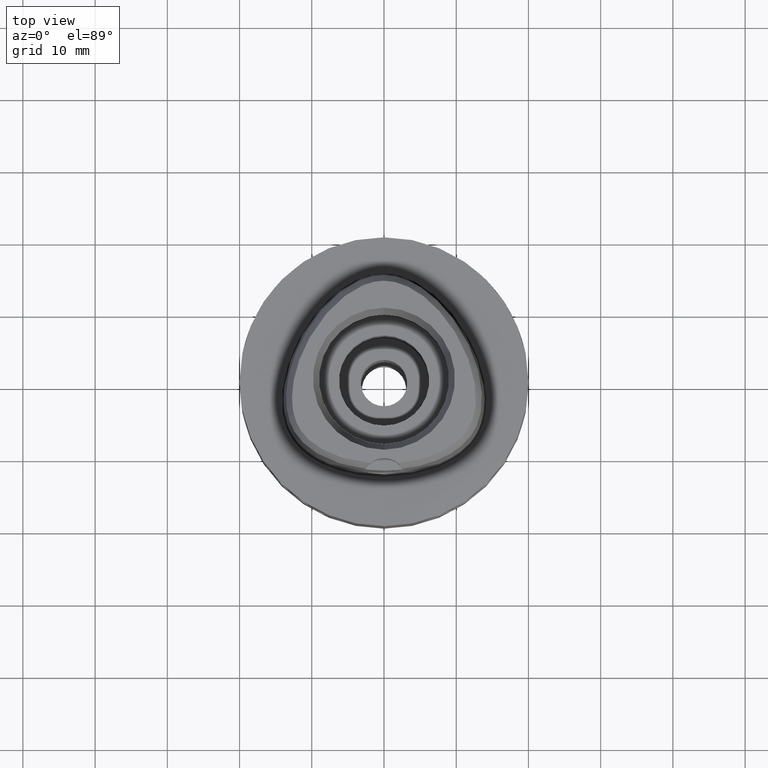
[diagram: clean part render]
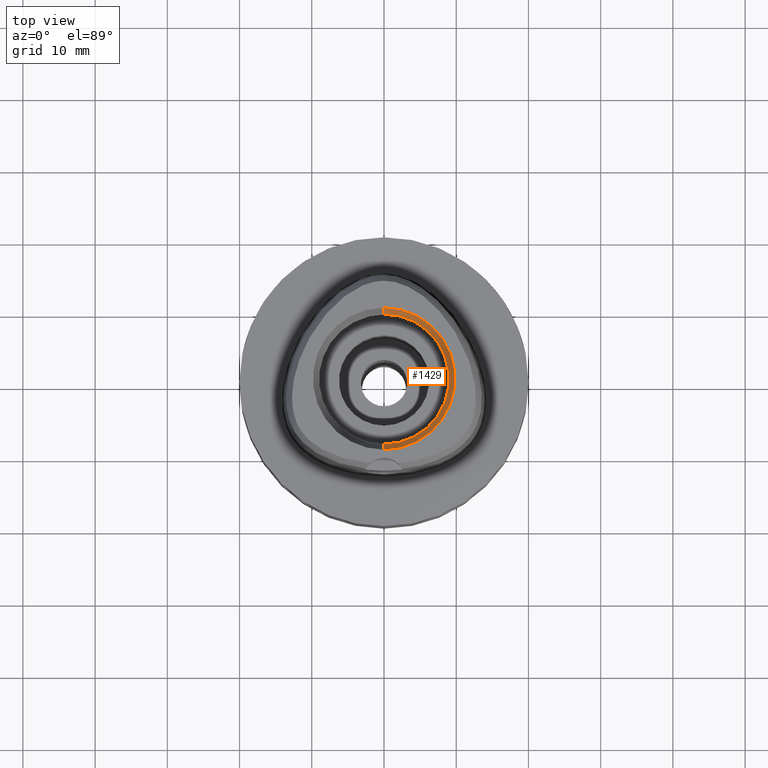
[diagram: same view with one face highlighted and labeled with its STEP entity id]
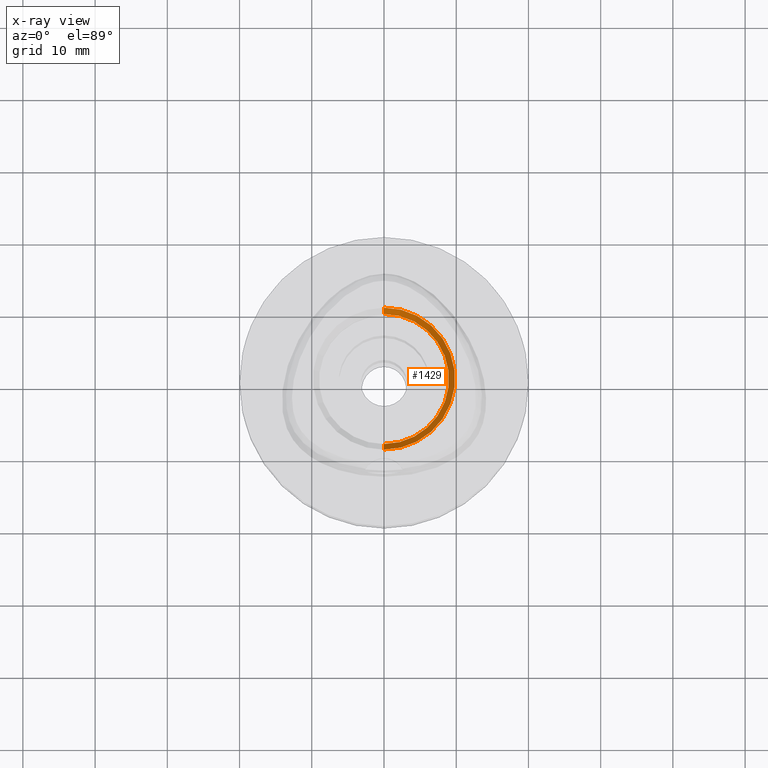
[diagram: x-ray of the same camera — body ghosted, the highlighted face saturated]
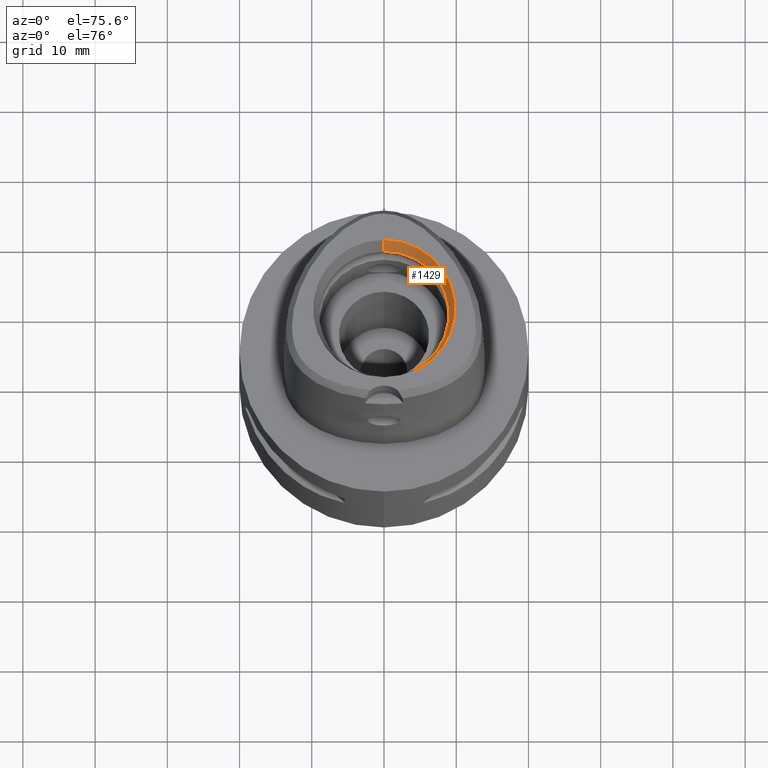
[diagram: same view with one face highlighted and labeled with its STEP entity id]
A machine part, top view. The second image highlights one B-rep face of the part: STEP entity #1429.
The next image is the same camera in x-ray: the body ghosted, the highlighted face saturated — about 0% of this face is hidden behind the body in this view.
A second angle (auxiliary view) of the same face is appended — the face is thin or edge-on in the first view.
In plain terms, the highlighted conical surface has half-angle 15 deg.
Its self-contained STEP definition (entity closure, byte-faithful):
#90 = DIRECTION ( 'NONE',  ( 0.0000000000000000000, 0.0000000000000000000, 1.000000000000000000 ) ) ;
#98 = FACE_OUTER_BOUND ( 'NONE', #2294, .T. ) ;
#163 = AXIS2_PLACEMENT_3D ( 'NONE', #2581, #1855, #3212 ) ;
#234 = CONICAL_SURFACE ( 'NONE', #163, 9.415321248268000431, 0.2617993877991000029 ) ;
#317 = CARTESIAN_POINT ( 'NONE',  ( 0.0000000000000000000, -9.000000000000000000, 20.89999999999999858 ) ) ;
#500 = VERTEX_POINT ( 'NONE', #3601 ) ;
#553 = EDGE_CURVE ( 'NONE', #4564, #500, #4456, .T. ) ;
#648 = LINE ( 'NONE', #2077, #1208 ) ;
#891 = VERTEX_POINT ( 'NONE', #317 ) ;
#943 = DIRECTION ( 'NONE',  ( 0.0000000000000000000, -1.000000000000000000, 0.0000000000000000000 ) ) ;
#957 = ORIENTED_EDGE ( 'NONE', *, *, #1569, .T. ) ;
#1041 = LINE ( 'NONE', #2459, #2258 ) ;
#1050 = DIRECTION ( 'NONE',  ( 0.0000000000000000000, -0.2588190451024934280, 0.9659258262890755287 ) ) ;
#1139 = AXIS2_PLACEMENT_3D ( 'NONE', #1497, #90, #1428 ) ;
#1147 = CARTESIAN_POINT ( 'NONE',  ( 0.0000000000000000000, 1.499580005555999857E-14, 24.00000000000000000 ) ) ;
#1208 = VECTOR ( 'NONE', #1050, 1000.000000000000227 ) ;
#1270 = ORIENTED_EDGE ( 'NONE', *, *, #1651, .F. ) ;
#1428 = DIRECTION ( 'NONE',  ( 0.0000000000000000000, -1.000000000000000000, 0.0000000000000000000 ) ) ;
#1429 = ADVANCED_FACE ( 'NONE', ( #98 ), #234, .F. ) ;
#1497 = CARTESIAN_POINT ( 'NONE',  ( 0.0000000000000000000, 1.499580005555999857E-14, 20.89999999999999858 ) ) ;
#1569 = EDGE_CURVE ( 'NONE', #891, #4564, #648, .T. ) ;
#1651 = EDGE_CURVE ( 'NONE', #891, #2252, #3132, .T. ) ;
#1798 = CARTESIAN_POINT ( 'NONE',  ( 0.0000000000000000000, -9.830642496535999086, 24.00000000000000000 ) ) ;
#1855 = DIRECTION ( 'NONE',  ( 0.0000000000000000000, 0.0000000000000000000, 1.000000000000000000 ) ) ;
#2077 = CARTESIAN_POINT ( 'NONE',  ( 0.0000000000000000000, -9.000000000000000000, 20.89999999999999858 ) ) ;
#2122 = DIRECTION ( 'NONE',  ( 0.0000000000000000000, 0.2588190451024934280, 0.9659258262890755287 ) ) ;
#2238 = AXIS2_PLACEMENT_3D ( 'NONE', #1147, #3977, #943 ) ;
#2252 = VERTEX_POINT ( 'NONE', #4404 ) ;
#2258 = VECTOR ( 'NONE', #2122, 1000.000000000000227 ) ;
#2294 = EDGE_LOOP ( 'NONE', ( #2635, #1270, #957, #3033 ) ) ;
#2459 = CARTESIAN_POINT ( 'NONE',  ( 0.0000000000000000000, 9.000000000000000000, 20.89999999999999858 ) ) ;
#2581 = CARTESIAN_POINT ( 'NONE',  ( 0.0000000000000000000, 1.499580005555999857E-14, 22.45000000000000284 ) ) ;
#2635 = ORIENTED_EDGE ( 'NONE', *, *, #3338, .F. ) ;
#3033 = ORIENTED_EDGE ( 'NONE', *, *, #553, .T. ) ;
#3132 = CIRCLE ( 'NONE', #1139, 9.000000000000000000 ) ;
#3212 = DIRECTION ( 'NONE',  ( 0.0000000000000000000, 1.000000000000000000, 0.0000000000000000000 ) ) ;
#3338 = EDGE_CURVE ( 'NONE', #2252, #500, #1041, .T. ) ;
#3601 = CARTESIAN_POINT ( 'NONE',  ( 0.0000000000000000000, 9.830642496535999086, 24.00000000000000000 ) ) ;
#3977 = DIRECTION ( 'NONE',  ( 0.0000000000000000000, 0.0000000000000000000, 1.000000000000000000 ) ) ;
#4404 = CARTESIAN_POINT ( 'NONE',  ( 0.0000000000000000000, 9.000000000000000000, 20.89999999999999858 ) ) ;
#4456 = CIRCLE ( 'NONE', #2238, 9.830642496535999086 ) ;
#4564 = VERTEX_POINT ( 'NONE', #1798 ) ;